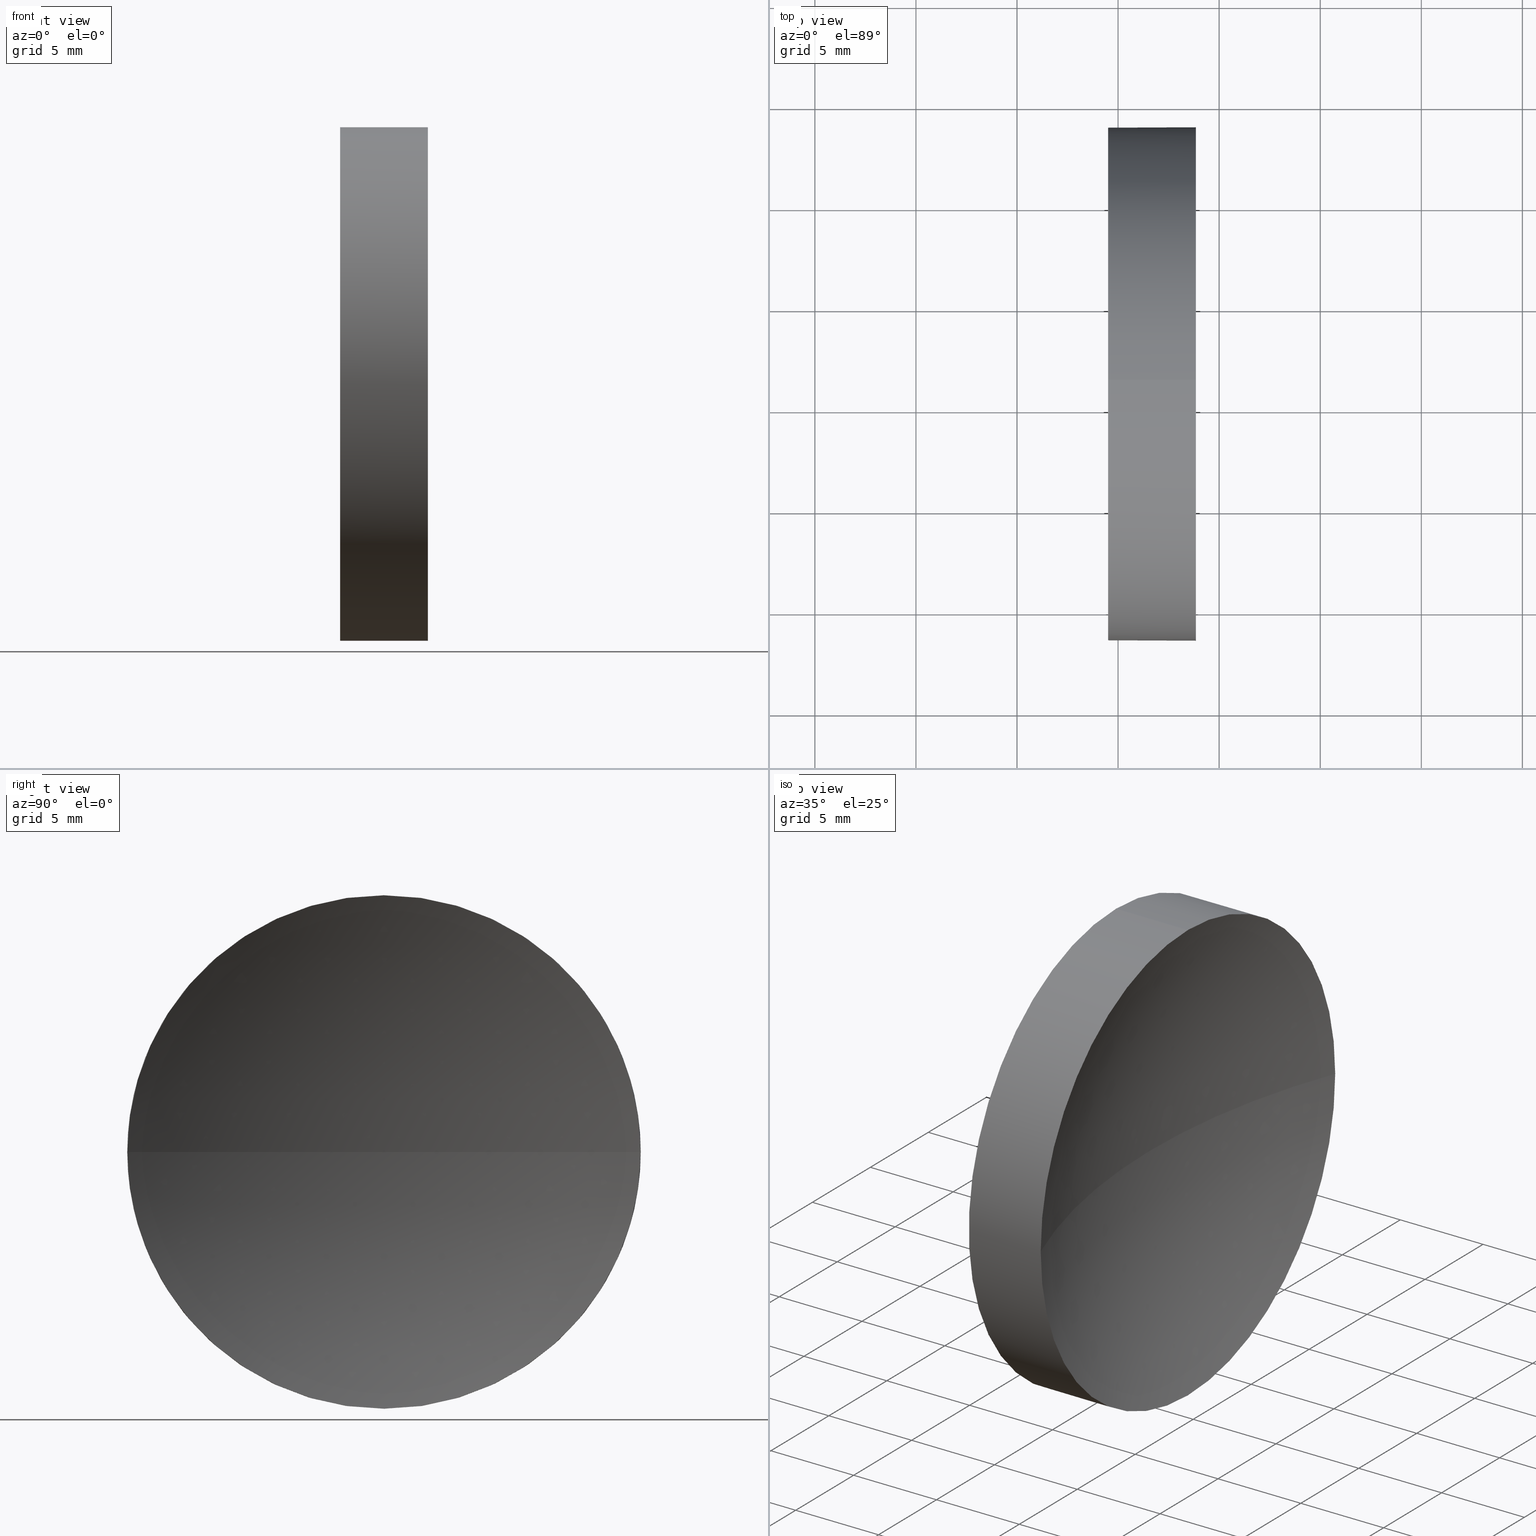
[diagram: canonical four-view strip — front | top / right | iso, engineering-drawing reading convention]
A machine part, canonical four-view strip (front | top / right | iso — engineering-drawing reading convention). The complete STEP part file that produces these views, byte-faithful:
ISO-10303-21;
HEADER;
FILE_DESCRIPTION (( 'STEP AP214' ),
    '1' );
FILE_NAME ('120325.STEP',
    '2019-06-27T05:57:08',
    ( '' ),
    ( '' ),
    'SwSTEP 2.0',
    'SolidWorks 2016',
    '' );
FILE_SCHEMA (( 'AUTOMOTIVE_DESIGN' ));
ENDSEC;

DATA;
#1 = UNCERTAINTY_MEASURE_WITH_UNIT (LENGTH_MEASURE( 1.000000000000000100E-005 ), #9, 'distance_accuracy_value', 'NONE');
#2 = CIRCLE ( 'NONE', #157, 35.60000000000000900 ) ;
#3 = ORIENTED_EDGE ( 'NONE', *, *, #46, .F. ) ;
#4 = DIRECTION ( 'NONE',  ( 0.0000000000000000000, 0.0000000000000000000, 1.000000000000000000 ) ) ;
#5 = EDGE_LOOP ( 'NONE', ( #110, #109, #36, #15, #122 ) ) ;
#6 = CARTESIAN_POINT ( 'NONE',  ( 119.5068341785477100, 71.19398908659370300, 12.70000000000000300 ) ) ;
#7 = CARTESIAN_POINT ( 'NONE',  ( 123.8492034752038400, 71.19398908659370300, 12.70000000000000300 ) ) ;
#8 = DIRECTION ( 'NONE',  ( 0.0000000000000000000, -1.224646799147353200E-016, 1.000000000000000000 ) ) ;
#9 =( LENGTH_UNIT ( ) NAMED_UNIT ( * ) SI_UNIT ( .MILLI., .METRE. ) );
#10 = AXIS2_PLACEMENT_3D ( 'NONE', #186, #106, #134 ) ;
#11 = CARTESIAN_POINT ( 'NONE',  ( 119.5068341785477100, 71.19398908659370300, -12.70000000000000300 ) ) ;
#12 = ORIENTED_EDGE ( 'NONE', *, *, #96, .T. ) ;
#13 = DIRECTION ( 'NONE',  ( -1.000000000000000000, -0.0000000000000000000, -0.0000000000000000000 ) ) ;
#14 = ADVANCED_FACE ( 'NONE', ( #35 ), #103, .T. ) ;
#15 = ORIENTED_EDGE ( 'NONE', *, *, #43, .F. ) ;
#16 = CIRCLE ( 'NONE', #20, 12.70000000000000300 ) ;
#17 = DIRECTION ( 'NONE',  ( 0.0000000000000000000, 0.0000000000000000000, -1.000000000000000000 ) ) ;
#18 = FACE_OUTER_BOUND ( 'NONE', #41, .T. ) ;
#19 = EDGE_CURVE ( 'NONE', #136, #27, #58, .T. ) ;
#20 = AXIS2_PLACEMENT_3D ( 'NONE', #75, #81, #4 ) ;
#21 =( NAMED_UNIT ( * ) PLANE_ANGLE_UNIT ( ) SI_UNIT ( $, .RADIAN. ) );
#22 = CARTESIAN_POINT ( 'NONE',  ( 111.9552297575605700, 71.19398908659370300, 12.70000000000000300 ) ) ;
#23 = VECTOR ( 'NONE', #97, 1000.000000000000000 ) ;
#24 = DIRECTION ( 'NONE',  ( 0.0000000000000000000, 0.0000000000000000000, 1.000000000000000000 ) ) ;
#25 = DIRECTION ( 'NONE',  ( 0.0000000000000000000, -1.000000000000000000, 0.0000000000000000000 ) ) ;
#26 = COLOUR_RGB ( '',1.000000000000000000, 1.000000000000000000, 1.000000000000000000 ) ;
#27 = VERTEX_POINT ( 'NONE', #149 ) ;
#28 =( GEOMETRIC_REPRESENTATION_CONTEXT ( 3 ) GLOBAL_UNCERTAINTY_ASSIGNED_CONTEXT ( ( #30 ) ) GLOBAL_UNIT_ASSIGNED_CONTEXT ( ( #160, #21, #131 ) ) REPRESENTATION_CONTEXT ( 'NONE', 'WORKASPACE' ) );
#29 =( LENGTH_UNIT ( ) NAMED_UNIT ( * ) SI_UNIT ( .MILLI., .METRE. ) );
#30 = UNCERTAINTY_MEASURE_WITH_UNIT (LENGTH_MEASURE( 1.000000000000000100E-005 ), #160, 'distance_accuracy_value', 'NONE');
#31 = FACE_OUTER_BOUND ( 'NONE', #175, .T. ) ;
#32 = PRODUCT_DEFINITION_FORMATION_WITH_SPECIFIED_SOURCE ( '�κ�', '', #108, .NOT_KNOWN. ) ;
#33 = ORIENTED_EDGE ( 'NONE', *, *, #130, .T. ) ;
#34 =( GEOMETRIC_REPRESENTATION_CONTEXT ( 3 ) GLOBAL_UNCERTAINTY_ASSIGNED_CONTEXT ( ( #145 ) ) GLOBAL_UNIT_ASSIGNED_CONTEXT ( ( #29, #124, #140 ) ) REPRESENTATION_CONTEXT ( 'NONE', 'WORKASPACE' ) );
#35 = FACE_OUTER_BOUND ( 'NONE', #158, .T. ) ;
#36 = ORIENTED_EDGE ( 'NONE', *, *, #96, .F. ) ;
#37 =( NAMED_UNIT ( * ) SI_UNIT ( $, .STERADIAN. ) SOLID_ANGLE_UNIT ( ) );
#38 = DIRECTION ( 'NONE',  ( 1.000000000000000000, 0.0000000000000000000, 0.0000000000000000000 ) ) ;
#39 = DIRECTION ( 'NONE',  ( 0.0000000000000000000, 0.0000000000000000000, 1.000000000000000000 ) ) ;
#40 = PRODUCT_DEFINITION_SHAPE ( 'NONE', 'NONE',  #44 ) ;
#41 = EDGE_LOOP ( 'NONE', ( #12, #113 ) ) ;
#42 = LINE ( 'NONE', #94, #53 ) ;
#43 = EDGE_CURVE ( 'NONE', #52, #138, #63, .T. ) ;
#44 = PRODUCT_DEFINITION ( 'δ֪', '', #32, #100 ) ;
#45 = ORIENTED_EDGE ( 'NONE', *, *, #141, .T. ) ;
#46 = EDGE_CURVE ( 'NONE', #80, #138, #181, .T. ) ;
#47 = MANIFOLD_SOLID_BREP ( '��ת1', #65 ) ;
#48 = CARTESIAN_POINT ( 'NONE',  ( 157.1068341785477000, 71.19398908659371700, 0.0000000000000000000 ) ) ;
#49 = FILL_AREA_STYLE_COLOUR ( '', #98 ) ;
#50 = DIRECTION ( 'NONE',  ( 0.0000000000000000000, 0.0000000000000000000, 1.000000000000000000 ) ) ;
#51 = APPLICATION_PROTOCOL_DEFINITION ( 'draft international standard', 'automotive_design', 1998, #185 ) ;
#52 = VERTEX_POINT ( 'NONE', #7 ) ;
#53 = VECTOR ( 'NONE', #70, 1000.000000000000000 ) ;
#54 =( GEOMETRIC_REPRESENTATION_CONTEXT ( 3 ) GLOBAL_UNCERTAINTY_ASSIGNED_CONTEXT ( ( #1 ) ) GLOBAL_UNIT_ASSIGNED_CONTEXT ( ( #9, #150, #37 ) ) REPRESENTATION_CONTEXT ( 'NONE', 'WORKASPACE' ) );
#55 = EDGE_CURVE ( 'NONE', #52, #136, #57, .T. ) ;
#56 = CARTESIAN_POINT ( 'NONE',  ( 157.1068341785477000, 71.19398908659371700, 0.0000000000000000000 ) ) ;
#57 = CIRCLE ( 'NONE', #62, 12.70000000000000300 ) ;
#58 = CIRCLE ( 'NONE', #156, 12.70000000000000300 ) ;
#59 = ORIENTED_EDGE ( 'NONE', *, *, #176, .F. ) ;
#60 = CARTESIAN_POINT ( 'NONE',  ( 111.9552297575605700, 71.19398908659370300, 0.0000000000000000000 ) ) ;
#61 = FILL_AREA_STYLE_COLOUR ( '', #26 ) ;
#62 = AXIS2_PLACEMENT_3D ( 'NONE', #179, #82, #24 ) ;
#63 = LINE ( 'NONE', #22, #23 ) ;
#64 = CARTESIAN_POINT ( 'NONE',  ( 0.0000000000000000000, 0.0000000000000000000, 0.0000000000000000000 ) ) ;
#65 = CLOSED_SHELL ( 'NONE', ( #107, #69, #121, #14, #84 ) ) ;
#66 = PRESENTATION_LAYER_ASSIGNMENT (  '', '', ( #112 ) ) ;
#67 = ORIENTED_EDGE ( 'NONE', *, *, #55, .F. ) ;
#68 = ORIENTED_EDGE ( 'NONE', *, *, #144, .T. ) ;
#69 = ADVANCED_FACE ( 'NONE', ( #31 ), #126, .F. ) ;
#70 = DIRECTION ( 'NONE',  ( -1.000000000000000000, -0.0000000000000000000, -0.0000000000000000000 ) ) ;
#71 = CARTESIAN_POINT ( 'NONE',  ( 121.5068341785476900, 71.19398908659371700, 0.0000000000000000000 ) ) ;
#72 = PRODUCT_RELATED_PRODUCT_CATEGORY ( 'part', '', ( #108 ) ) ;
#73 = CARTESIAN_POINT ( 'NONE',  ( 123.8492034752038400, 71.19398908659370300, 0.0000000000000000000 ) ) ;
#74 = FILL_AREA_STYLE ('',( #61 ) ) ;
#75 = CARTESIAN_POINT ( 'NONE',  ( 123.8492034752038400, 71.19398908659370300, 0.0000000000000000000 ) ) ;
#76 = DIRECTION ( 'NONE',  ( 0.0000000000000000000, 0.0000000000000000000, 1.000000000000000000 ) ) ;
#77 = CARTESIAN_POINT ( 'NONE',  ( 119.5068341785477100, 71.19398908659370300, 0.0000000000000000000 ) ) ;
#78 = ORIENTED_EDGE ( 'NONE', *, *, #141, .F. ) ;
#79 = AXIS2_PLACEMENT_3D ( 'NONE', #56, #17, #111 ) ;
#80 = VERTEX_POINT ( 'NONE', #11 ) ;
#81 = DIRECTION ( 'NONE',  ( -1.000000000000000000, -0.0000000000000000000, -0.0000000000000000000 ) ) ;
#82 = DIRECTION ( 'NONE',  ( -1.000000000000000000, -0.0000000000000000000, -0.0000000000000000000 ) ) ;
#83 = ORIENTED_EDGE ( 'NONE', *, *, #130, .F. ) ;
#84 = ADVANCED_FACE ( 'NONE', ( #18 ), #118, .F. ) ;
#85 = CARTESIAN_POINT ( 'NONE',  ( 123.8492034752038400, 83.89398908659370600, 1.555301434917137400E-015 ) ) ;
#86 = DIRECTION ( 'NONE',  ( -1.000000000000000000, -0.0000000000000000000, -0.0000000000000000000 ) ) ;
#87 = DIRECTION ( 'NONE',  ( 0.0000000000000000000, -1.000000000000000000, 0.0000000000000000000 ) ) ;
#88 = PRESENTATION_LAYER_ASSIGNMENT (  '', '', ( #174 ) ) ;
#89 = DIRECTION ( 'NONE',  ( 0.0000000000000000000, 0.0000000000000000000, 1.000000000000000000 ) ) ;
#90 = CARTESIAN_POINT ( 'NONE',  ( 157.1068341785477000, 71.19398908659371700, 0.0000000000000000000 ) ) ;
#91 = AXIS2_PLACEMENT_3D ( 'NONE', #64, #89, #180 ) ;
#92 = CARTESIAN_POINT ( 'NONE',  ( 111.9552297575605700, 71.19398908659370300, 0.0000000000000000000 ) ) ;
#93 = SURFACE_STYLE_FILL_AREA ( #74 ) ;
#94 = CARTESIAN_POINT ( 'NONE',  ( 111.9552297575605700, 71.19398908659370300, -12.70000000000000300 ) ) ;
#95 = FACE_OUTER_BOUND ( 'NONE', #5, .T. ) ;
#96 = EDGE_CURVE ( 'NONE', #138, #80, #159, .T. ) ;
#97 = DIRECTION ( 'NONE',  ( -1.000000000000000000, -0.0000000000000000000, -0.0000000000000000000 ) ) ;
#98 = COLOUR_RGB ( '',1.000000000000000000, 1.000000000000000000, 1.000000000000000000 ) ;
#99 = ORIENTED_EDGE ( 'NONE', *, *, #184, .F. ) ;
#100 = PRODUCT_DEFINITION_CONTEXT ( 'detailed design', #133, 'design' ) ;
#101 = CARTESIAN_POINT ( 'NONE',  ( 123.8492034752038400, 71.19398908659370300, 0.0000000000000000000 ) ) ;
#102 = DIRECTION ( 'NONE',  ( 0.0000000000000000000, -1.000000000000000000, -1.224646799147353200E-016 ) ) ;
#103 = CYLINDRICAL_SURFACE ( 'NONE', #168, 12.70000000000000300 ) ;
#104 = APPLICATION_PROTOCOL_DEFINITION ( 'draft international standard', 'automotive_design', 1998, #133 ) ;
#105 = EDGE_LOOP ( 'NONE', ( #83, #67, #143, #165 ) ) ;
#106 = DIRECTION ( 'NONE',  ( -1.000000000000000000, -0.0000000000000000000, -0.0000000000000000000 ) ) ;
#107 = ADVANCED_FACE ( 'NONE', ( #95 ), #169, .T. ) ;
#108 = PRODUCT ( '120325', '120325', '', ( #164 ) ) ;
#109 = ORIENTED_EDGE ( 'NONE', *, *, #176, .T. ) ;
#110 = ORIENTED_EDGE ( 'NONE', *, *, #19, .T. ) ;
#111 = DIRECTION ( 'NONE',  ( -1.000000000000000000, 0.0000000000000000000, 0.0000000000000000000 ) ) ;
#112 = STYLED_ITEM ( 'NONE', ( #170 ), #125 ) ;
#113 = ORIENTED_EDGE ( 'NONE', *, *, #46, .T. ) ;
#114 = AXIS2_PLACEMENT_3D ( 'NONE', #90, #167, #25 ) ;
#115 = CARTESIAN_POINT ( 'NONE',  ( 157.1068341785477000, 71.19398908659371700, 0.0000000000000000000 ) ) ;
#116 = DIRECTION ( 'NONE',  ( 0.0000000000000000000, 0.0000000000000000000, 1.000000000000000000 ) ) ;
#117 = SURFACE_STYLE_USAGE ( .BOTH. , #172 ) ;
#118 = PLANE ( 'NONE',  #128 ) ;
#119 = VERTEX_POINT ( 'NONE', #151 ) ;
#120 = SHAPE_DEFINITION_REPRESENTATION ( #40, #125 ) ;
#121 = ADVANCED_FACE ( 'NONE', ( #173 ), #129, .F. ) ;
#122 = ORIENTED_EDGE ( 'NONE', *, *, #55, .T. ) ;
#123 = CIRCLE ( 'NONE', #139, 12.70000000000000300 ) ;
#124 =( NAMED_UNIT ( * ) PLANE_ANGLE_UNIT ( ) SI_UNIT ( $, .RADIAN. ) );
#125 = ADVANCED_BREP_SHAPE_REPRESENTATION ( '120325', ( #47, #91 ), #34 ) ;
#126 = SPHERICAL_SURFACE ( 'NONE', #114, 35.60000000000000900 ) ;
#127 = MECHANICAL_DESIGN_GEOMETRIC_PRESENTATION_REPRESENTATION (  '', ( #174 ), #28 ) ;
#128 = AXIS2_PLACEMENT_3D ( 'NONE', #77, #38, #137 ) ;
#129 = SPHERICAL_SURFACE ( 'NONE', #146, 35.60000000000000900 ) ;
#130 = EDGE_CURVE ( 'NONE', #136, #182, #2, .T. ) ;
#131 =( NAMED_UNIT ( * ) SI_UNIT ( $, .STERADIAN. ) SOLID_ANGLE_UNIT ( ) );
#132 = DIRECTION ( 'NONE',  ( 0.0000000000000000000, 0.0000000000000000000, 1.000000000000000000 ) ) ;
#133 = APPLICATION_CONTEXT ( 'automotive_design' ) ;
#134 = DIRECTION ( 'NONE',  ( 0.0000000000000000000, 0.0000000000000000000, 1.000000000000000000 ) ) ;
#135 = DIRECTION ( 'NONE',  ( -1.000000000000000000, -0.0000000000000000000, -0.0000000000000000000 ) ) ;
#136 = VERTEX_POINT ( 'NONE', #85 ) ;
#137 = DIRECTION ( 'NONE',  ( 0.0000000000000000000, 0.0000000000000000000, -1.000000000000000000 ) ) ;
#138 = VERTEX_POINT ( 'NONE', #6 ) ;
#139 = AXIS2_PLACEMENT_3D ( 'NONE', #73, #161, #147 ) ;
#140 =( NAMED_UNIT ( * ) SI_UNIT ( $, .STERADIAN. ) SOLID_ANGLE_UNIT ( ) );
#141 = EDGE_CURVE ( 'NONE', #27, #119, #123, .T. ) ;
#142 = SURFACE_STYLE_FILL_AREA ( #148 ) ;
#143 = ORIENTED_EDGE ( 'NONE', *, *, #144, .F. ) ;
#144 = EDGE_CURVE ( 'NONE', #119, #52, #16, .T. ) ;
#145 = UNCERTAINTY_MEASURE_WITH_UNIT (LENGTH_MEASURE( 1.000000000000000100E-005 ), #29, 'distance_accuracy_value', 'NONE');
#146 = AXIS2_PLACEMENT_3D ( 'NONE', #115, #76, #87 ) ;
#147 = DIRECTION ( 'NONE',  ( 0.0000000000000000000, 0.0000000000000000000, 1.000000000000000000 ) ) ;
#148 = FILL_AREA_STYLE ('',( #49 ) ) ;
#149 = CARTESIAN_POINT ( 'NONE',  ( 123.8492034752038400, 71.19398908659370300, -12.70000000000000300 ) ) ;
#150 =( NAMED_UNIT ( * ) PLANE_ANGLE_UNIT ( ) SI_UNIT ( $, .RADIAN. ) );
#151 = CARTESIAN_POINT ( 'NONE',  ( 123.8492034752038400, 58.49398908659371400, 0.0000000000000000000 ) ) ;
#152 = ORIENTED_EDGE ( 'NONE', *, *, #43, .T. ) ;
#153 = AXIS2_PLACEMENT_3D ( 'NONE', #178, #86, #116 ) ;
#154 = MECHANICAL_DESIGN_GEOMETRIC_PRESENTATION_REPRESENTATION (  '', ( #112 ), #54 ) ;
#155 = ORIENTED_EDGE ( 'NONE', *, *, #19, .F. ) ;
#156 = AXIS2_PLACEMENT_3D ( 'NONE', #101, #135, #50 ) ;
#157 = AXIS2_PLACEMENT_3D ( 'NONE', #48, #8, #102 ) ;
#158 = EDGE_LOOP ( 'NONE', ( #59, #45, #68, #152, #3 ) ) ;
#159 = CIRCLE ( 'NONE', #10, 12.70000000000000300 ) ;
#160 =( LENGTH_UNIT ( ) NAMED_UNIT ( * ) SI_UNIT ( .MILLI., .METRE. ) );
#161 = DIRECTION ( 'NONE',  ( -1.000000000000000000, -0.0000000000000000000, -0.0000000000000000000 ) ) ;
#162 = SURFACE_STYLE_USAGE ( .BOTH. , #183 ) ;
#163 = DIRECTION ( 'NONE',  ( -1.000000000000000000, -0.0000000000000000000, -0.0000000000000000000 ) ) ;
#164 = PRODUCT_CONTEXT ( 'NONE', #185, 'mechanical' ) ;
#165 = ORIENTED_EDGE ( 'NONE', *, *, #184, .T. ) ;
#166 = CIRCLE ( 'NONE', #79, 35.60000000000000900 ) ;
#167 = DIRECTION ( 'NONE',  ( 0.0000000000000000000, 0.0000000000000000000, 1.000000000000000000 ) ) ;
#168 = AXIS2_PLACEMENT_3D ( 'NONE', #60, #163, #132 ) ;
#169 = CYLINDRICAL_SURFACE ( 'NONE', #177, 12.70000000000000300 ) ;
#170 = PRESENTATION_STYLE_ASSIGNMENT (( #117 ) ) ;
#171 = PRESENTATION_STYLE_ASSIGNMENT (( #162 ) ) ;
#172 = SURFACE_SIDE_STYLE ('',( #93 ) ) ;
#173 = FACE_OUTER_BOUND ( 'NONE', #105, .T. ) ;
#174 = STYLED_ITEM ( 'NONE', ( #171 ), #47 ) ;
#175 = EDGE_LOOP ( 'NONE', ( #155, #33, #99, #78 ) ) ;
#176 = EDGE_CURVE ( 'NONE', #27, #80, #42, .T. ) ;
#177 = AXIS2_PLACEMENT_3D ( 'NONE', #92, #13, #39 ) ;
#178 = CARTESIAN_POINT ( 'NONE',  ( 119.5068341785477100, 71.19398908659370300, 0.0000000000000000000 ) ) ;
#179 = CARTESIAN_POINT ( 'NONE',  ( 123.8492034752038400, 71.19398908659370300, 0.0000000000000000000 ) ) ;
#180 = DIRECTION ( 'NONE',  ( 1.000000000000000000, 0.0000000000000000000, 0.0000000000000000000 ) ) ;
#181 = CIRCLE ( 'NONE', #153, 12.70000000000000300 ) ;
#182 = VERTEX_POINT ( 'NONE', #71 ) ;
#183 = SURFACE_SIDE_STYLE ('',( #142 ) ) ;
#184 = EDGE_CURVE ( 'NONE', #119, #182, #166, .T. ) ;
#185 = APPLICATION_CONTEXT ( 'automotive_design' ) ;
#186 = CARTESIAN_POINT ( 'NONE',  ( 119.5068341785477100, 71.19398908659370300, 0.0000000000000000000 ) ) ;
ENDSEC;
END-ISO-10303-21;
